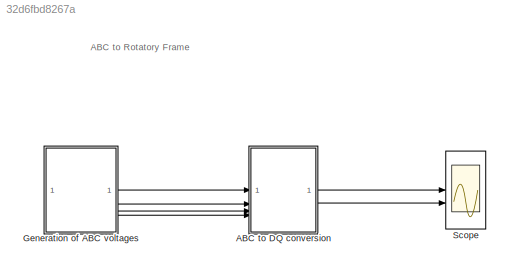
MODEL slx_32d6fbd8267a
KIND model
CONFIG AbsTol = auto
CONFIG EnableMultiTasking = off
CONFIG FixedStep = auto
CONFIG MaxStep = auto
CONFIG MinStep = auto
CONFIG RelTol = 1e-3
CONFIG SampleTimeConstraint = Unconstrained
CONFIG SolverName = VariableStepAuto
CONFIG StartTime = 0.0
CONFIG StopTime = 1.0
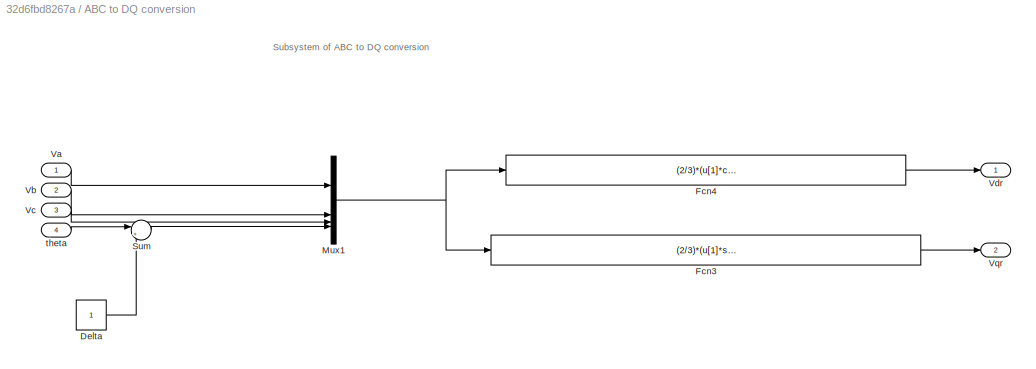
BLOCK [SubSystem] ABC to DQ conversion
BLOCK [Constant] ABC to DQ conversion/Delta
BLOCK [Fcn] ABC to DQ conversion/Fcn3
  Expr = (2/3)*(u[1]*sin(u[4])+u[2]*(sin(u[4]-((120*3.14)/180)))+u[3]*(sin(u[4]+((120*3.14)/180))))
BLOCK [Fcn] ABC to DQ conversion/Fcn4
  Expr = (2/3)*(u[1]*cos(u[4])+u[2]*(cos(u[4]-((120*3.14)/180)))+u[3]*(cos(u[4]+((120*3.14)/180))))
BLOCK [Mux] ABC to DQ conversion/Mux1
  DisplayOption = bar
BLOCK [Sum] ABC to DQ conversion/Sum
  Inputs = |+-
BLOCK [Inport] ABC to DQ conversion/Va
BLOCK [Inport] ABC to DQ conversion/Vb
  Port = 2
BLOCK [Inport] ABC to DQ conversion/Vc
  Port = 3
BLOCK [Outport] ABC to DQ conversion/Vdr
BLOCK [Outport] ABC to DQ conversion/Vqr
  Port = 2
BLOCK [Inport] ABC to DQ conversion/theta
  Port = 4
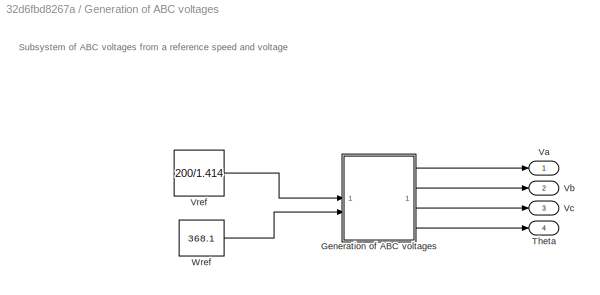
BLOCK [SubSystem] Generation of ABC voltages
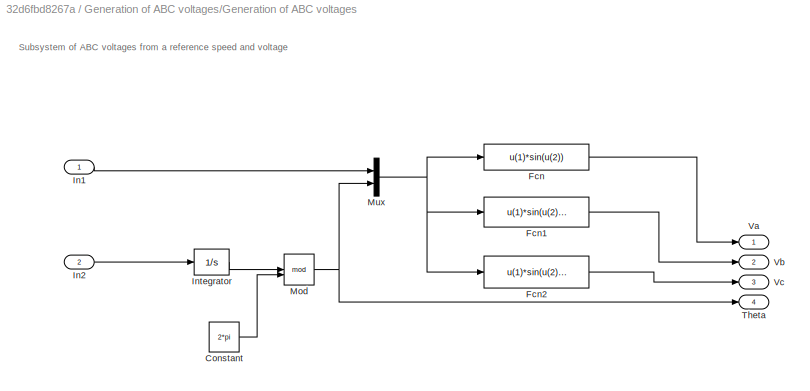
BLOCK [SubSystem] Generation of ABC voltages/Generation of ABC voltages
BLOCK [Constant] Generation of ABC voltages/Generation of ABC voltages/Constant
  Value = 2*pi
BLOCK [Fcn] Generation of ABC voltages/Generation of ABC voltages/Fcn
  Expr = u(1)*sin(u(2))
BLOCK [Fcn] Generation of ABC voltages/Generation of ABC voltages/Fcn1
  Expr = u(1)*sin(u(2)-2*pi/3)
BLOCK [Fcn] Generation of ABC voltages/Generation of ABC voltages/Fcn2
  Expr = u(1)*sin(u(2)+2*pi/3)
BLOCK [Inport] Generation of ABC voltages/Generation of ABC voltages/In1
BLOCK [Inport] Generation of ABC voltages/Generation of ABC voltages/In2
  Port = 2
BLOCK [Integrator] Generation of ABC voltages/Generation of ABC voltages/Integrator
BLOCK [Math] Generation of ABC voltages/Generation of ABC voltages/Mod
  Operator = mod
BLOCK [Mux] Generation of ABC voltages/Generation of ABC voltages/Mux
  DisplayOption = bar
  Inputs = 2
BLOCK [Outport] Generation of ABC voltages/Generation of ABC voltages/Theta
  Port = 4
BLOCK [Outport] Generation of ABC voltages/Generation of ABC voltages/Va
BLOCK [Outport] Generation of ABC voltages/Generation of ABC voltages/Vb
  Port = 2
BLOCK [Outport] Generation of ABC voltages/Generation of ABC voltages/Vc
  Port = 3
BLOCK [Outport] Generation of ABC voltages/Theta
  Port = 4
BLOCK [Outport] Generation of ABC voltages/Va
BLOCK [Outport] Generation of ABC voltages/Vb
  Port = 2
BLOCK [Outport] Generation of ABC voltages/Vc
  Port = 3
BLOCK [Constant] Generation of ABC voltages/Vref
  Value = 200/1.414
BLOCK [Constant] Generation of ABC voltages/Wref
  Value = 368.1
BLOCK [Scope] Scope
  Floating = off
  NumInputPorts = 2
  ScopeSpecificationString = Simulink.scopes.TimeScopeBlockCfg('CurrentConfiguration', extmgr.ConfigurationSet(extmgr.Configuration('Core','General UI',true,'FigureColor',[1 1 1]),extmgr.Configuration('Core','Source UI',true),extmgr.Configuration('Sources','WiredSimulink',true),extmgr.Configuration('Visuals','Time Domain',true,'SerializedDisplays',{struct('MinYLimReal','70.9888','MaxYLimReal','124.45259','YLabelReal','Voltage...<+1703ch>
ANNOTATION (root): ABC to Rotatory Frame
ANNOTATION ABC to DQ conversion: Subsystem of ABC to DQ conversion
ANNOTATION Generation of ABC voltages: Subsystem of ABC voltages from a reference speed and voltage
ANNOTATION Generation of ABC voltages/Generation of ABC voltages: Subsystem of ABC voltages from a reference speed and voltage
LINE ABC to DQ conversion/Delta:1 -> ABC to DQ conversion/Sum:2
LINE ABC to DQ conversion/Fcn3:1 -> ABC to DQ conversion/Vqr:1
LINE ABC to DQ conversion/Fcn4:1 -> ABC to DQ conversion/Vdr:1
NET ABC to DQ conversion/Mux1:1 -> ABC to DQ conversion/Fcn3:1, ABC to DQ conversion/Fcn4:1
LINE ABC to DQ conversion/Sum:1 -> ABC to DQ conversion/Mux1:4
LINE ABC to DQ conversion/Va:1 -> ABC to DQ conversion/Mux1:1
LINE ABC to DQ conversion/Vb:1 -> ABC to DQ conversion/Mux1:2
LINE ABC to DQ conversion/Vc:1 -> ABC to DQ conversion/Mux1:3
LINE ABC to DQ conversion/theta:1 -> ABC to DQ conversion/Sum:1
LINE ABC to DQ conversion:1 -> Scope:1
LINE ABC to DQ conversion:2 -> Scope:2
LINE Generation of ABC voltages/Generation of ABC voltages/Constant:1 -> Generation of ABC voltages/Generation of ABC voltages/Mod:2
LINE Generation of ABC voltages/Generation of ABC voltages/Fcn1:1 -> Generation of ABC voltages/Generation of ABC voltages/Vb:1
LINE Generation of ABC voltages/Generation of ABC voltages/Fcn2:1 -> Generation of ABC voltages/Generation of ABC voltages/Vc:1
LINE Generation of ABC voltages/Generation of ABC voltages/Fcn:1 -> Generation of ABC voltages/Generation of ABC voltages/Va:1
LINE Generation of ABC voltages/Generation of ABC voltages/In1:1 -> Generation of ABC voltages/Generation of ABC voltages/Mux:1
LINE Generation of ABC voltages/Generation of ABC voltages/In2:1 -> Generation of ABC voltages/Generation of ABC voltages/Integrator:1
LINE Generation of ABC voltages/Generation of ABC voltages/Integrator:1 -> Generation of ABC voltages/Generation of ABC voltages/Mod:1
NET Generation of ABC voltages/Generation of ABC voltages/Mod:1 -> Generation of ABC voltages/Generation of ABC voltages/Mux:2, Generation of ABC voltages/Generation of ABC voltages/Theta:1
NET Generation of ABC voltages/Generation of ABC voltages/Mux:1 -> Generation of ABC voltages/Generation of ABC voltages/Fcn1:1, Generation of ABC voltages/Generation of ABC voltages/Fcn2:1, Generation of ABC voltages/Generation of ABC voltages/Fcn:1
LINE Generation of ABC voltages/Generation of ABC voltages:1 -> Generation of ABC voltages/Va:1
LINE Generation of ABC voltages/Generation of ABC voltages:2 -> Generation of ABC voltages/Vb:1
LINE Generation of ABC voltages/Generation of ABC voltages:3 -> Generation of ABC voltages/Vc:1
LINE Generation of ABC voltages/Generation of ABC voltages:4 -> Generation of ABC voltages/Theta:1
LINE Generation of ABC voltages/Vref:1 -> Generation of ABC voltages/Generation of ABC voltages:1
LINE Generation of ABC voltages/Wref:1 -> Generation of ABC voltages/Generation of ABC voltages:2
LINE Generation of ABC voltages:1 -> ABC to DQ conversion:1
LINE Generation of ABC voltages:2 -> ABC to DQ conversion:2
LINE Generation of ABC voltages:3 -> ABC to DQ conversion:3
LINE Generation of ABC voltages:4 -> ABC to DQ conversion:4
note: NET lines group one-source signal fan-out (src -> all destinations, sorted); 1:1 wires keep LINE
